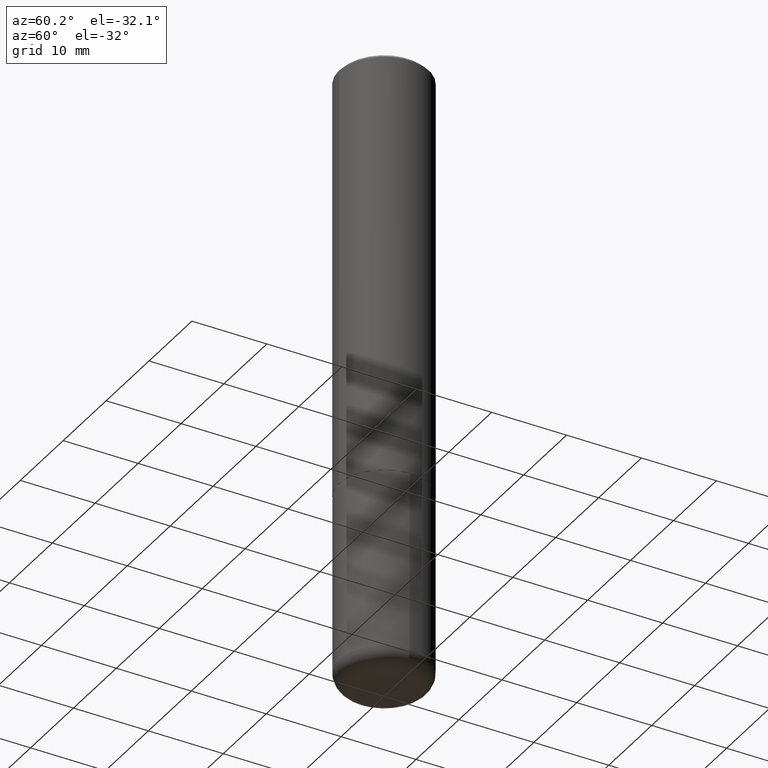
[diagram: clean part render]
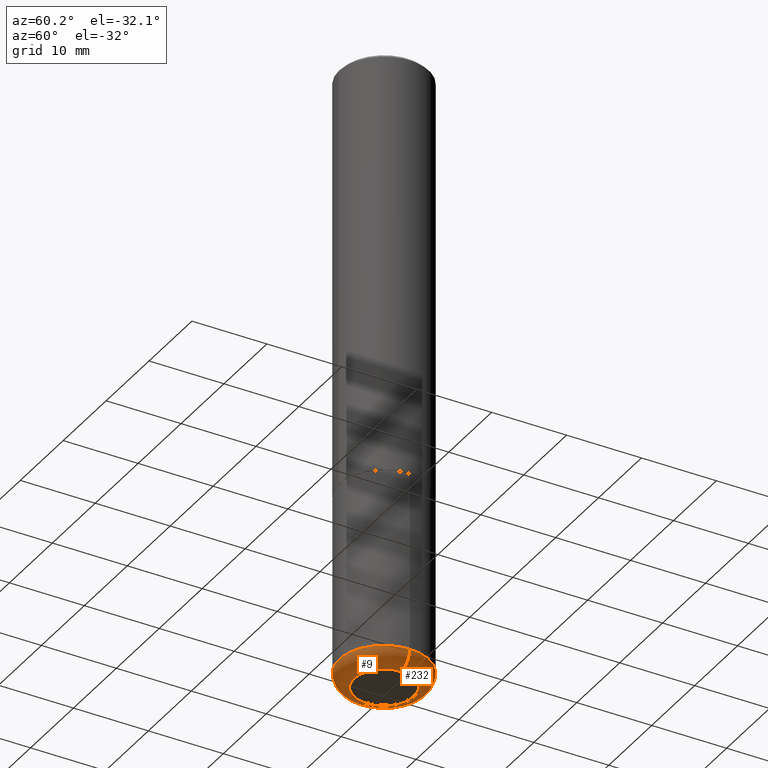
[diagram: same view with one multi-face feature highlighted, each face labeled with its STEP entity id]
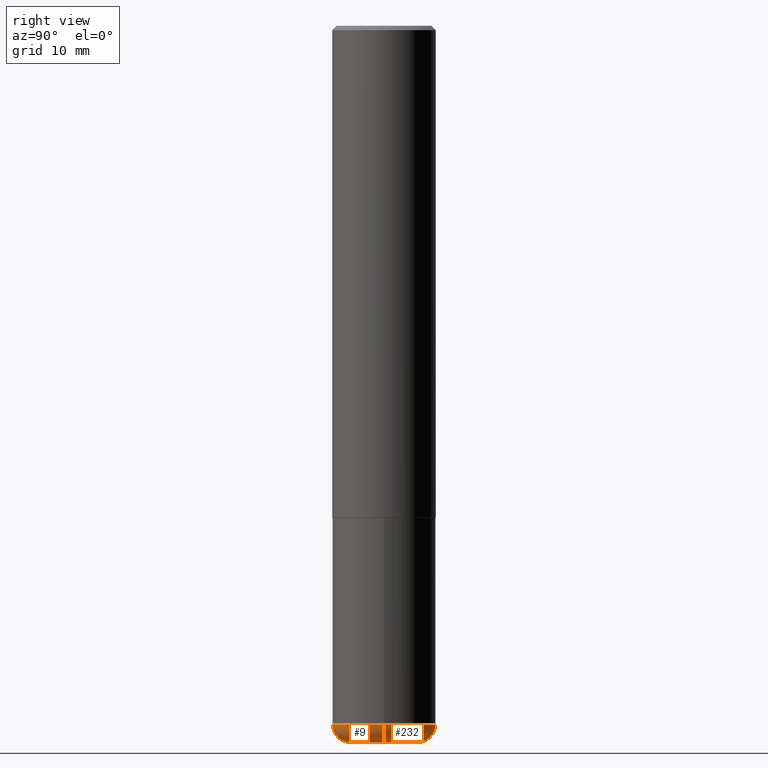
[diagram: same view with one multi-face feature highlighted, each face labeled with its STEP entity id]
A machine part, auxiliary view. The highlighted faces form ONE feature: a constant-radius fillet chain: 2 tangent blend faces with common blend radius 1.999 mm. The faces share edges in the B-rep.
A second angle (right view) of the same feature is appended — it is thin or edge-on in the first view.
Their STEP definitions:
[1] entity #9 (Torus):
#9 = ADVANCED_FACE ( 'NONE', ( #109 ), #128, .T. ) ;
#13 = ORIENTED_EDGE ( 'NONE', *, *, #85, .F. ) ;
#14 = AXIS2_PLACEMENT_3D ( 'NONE', #220, #155, #21 ) ;
#21 = DIRECTION ( 'NONE',  ( 1.000000000000000000, -6.982962677686261977E-15, 0.000000000000000000 ) ) ;
#23 = DIRECTION ( 'NONE',  ( -2.445468806185136597E-29, 3.491481338843145583E-15, 1.000000000000000000 ) ) ;
#25 = DIRECTION ( 'NONE',  ( 1.000000000000000000, -6.982962677686264344E-15, 0.000000000000000000 ) ) ;
#29 = VERTEX_POINT ( 'NONE', #276 ) ;
#41 = CIRCLE ( 'NONE', #48, 0.2362000000000000210 ) ;
#44 = CARTESIAN_POINT ( 'NONE',  ( 7.798600022924401307E-29, -1.113433398957079310E-14, -3.189000000000000501 ) ) ;
#46 = CARTESIAN_POINT ( 'NONE',  ( 0.2362000000000001321, -1.278370977404028805E-14, -3.189000000000000501 ) ) ;
#47 = AXIS2_PLACEMENT_3D ( 'NONE', #249, #217, #252 ) ;
#48 = AXIS2_PLACEMENT_3D ( 'NONE', #316, #23, #25 ) ;
#64 = ORIENTED_EDGE ( 'NONE', *, *, #242, .T. ) ;
#84 = DIRECTION ( 'NONE',  ( 1.000000000000000000, -6.982962677686273810E-15, 0.000000000000000000 ) ) ;
#85 = EDGE_CURVE ( 'NONE', #97, #270, #370, .T. ) ;
#97 = VERTEX_POINT ( 'NONE', #247 ) ;
#102 = VERTEX_POINT ( 'NONE', #46 ) ;
#109 = FACE_OUTER_BOUND ( 'NONE', #309, .T. ) ;
#128 = TOROIDAL_SURFACE ( 'NONE', #410, 0.1575000000000000011, 0.07870000000000024198 ) ;
#137 = AXIS2_PLACEMENT_3D ( 'NONE', #351, #197, #84 ) ;
#155 = DIRECTION ( 'NONE',  ( -2.445468806185136597E-29, 3.491481338843145583E-15, 1.000000000000000000 ) ) ;
#159 = CIRCLE ( 'NONE', #137, 0.07870000000000024198 ) ;
#175 = ORIENTED_EDGE ( 'NONE', *, *, #350, .F. ) ;
#197 = DIRECTION ( 'NONE',  ( -6.982962677686266711E-15, -1.000000000000000000, 3.491481338843145583E-15 ) ) ;
#217 = DIRECTION ( 'NONE',  ( 7.105427357601001859E-15, 1.000000000000000000, -3.491481338843145583E-15 ) ) ;
#220 = CARTESIAN_POINT ( 'NONE',  ( 7.991058417971172834E-29, -1.140911357093774960E-14, -3.267700000000000937 ) ) ;
#237 = ORIENTED_EDGE ( 'NONE', *, *, #296, .T. ) ;
#242 = EDGE_CURVE ( 'NONE', #97, #29, #285, .T. ) ;
#247 = CARTESIAN_POINT ( 'NONE',  ( -0.1575000000000000011, -9.873020404910514350E-15, -3.267700000000000937 ) ) ;
#249 = CARTESIAN_POINT ( 'NONE',  ( -0.1575000000000000011, -1.001522918074863550E-14, -3.189000000000000501 ) ) ;
#252 = DIRECTION ( 'NONE',  ( -1.000000000000000000, 7.105427357600995548E-15, 0.000000000000000000 ) ) ;
#270 = VERTEX_POINT ( 'NONE', #318 ) ;
#276 = CARTESIAN_POINT ( 'NONE',  ( 0.1575000000000000011, -1.250893019267333471E-14, -3.267700000000000937 ) ) ;
#285 = CIRCLE ( 'NONE', #14, 0.1575000000000000011 ) ;
#296 = EDGE_CURVE ( 'NONE', #29, #102, #159, .T. ) ;
#304 = DIRECTION ( 'NONE',  ( 1.000000000000000000, -6.982962677686265922E-15, 4.883557194083112901E-29 ) ) ;
#309 = EDGE_LOOP ( 'NONE', ( #13, #64, #237, #175 ) ) ;
#316 = CARTESIAN_POINT ( 'NONE',  ( 7.798600022924401307E-29, -1.113433398957079310E-14, -3.189000000000000501 ) ) ;
#318 = CARTESIAN_POINT ( 'NONE',  ( -0.2362000000000001321, -9.456032047705438285E-15, -3.189000000000000501 ) ) ;
#334 = DIRECTION ( 'NONE',  ( -2.445468806185136597E-29, 3.491481338843145583E-15, 1.000000000000000000 ) ) ;
#350 = EDGE_CURVE ( 'NONE', #270, #102, #41, .T. ) ;
#351 = CARTESIAN_POINT ( 'NONE',  ( 0.1575000000000000011, -1.223415061130637979E-14, -3.189000000000000501 ) ) ;
#370 = CIRCLE ( 'NONE', #47, 0.07870000000000024198 ) ;
#410 = AXIS2_PLACEMENT_3D ( 'NONE', #44, #334, #304 ) ;
[2] entity #232 (Torus):
#18 = DIRECTION ( 'NONE',  ( -2.445468806185136597E-29, 3.491481338843145583E-15, 1.000000000000000000 ) ) ;
#26 = CARTESIAN_POINT ( 'NONE',  ( 7.798600022924401307E-29, -1.113433398957079310E-14, -3.189000000000000501 ) ) ;
#29 = VERTEX_POINT ( 'NONE', #276 ) ;
#45 = DIRECTION ( 'NONE',  ( -2.445468806185136597E-29, 3.491481338843145583E-15, 1.000000000000000000 ) ) ;
#46 = CARTESIAN_POINT ( 'NONE',  ( 0.2362000000000001321, -1.278370977404028805E-14, -3.189000000000000501 ) ) ;
#47 = AXIS2_PLACEMENT_3D ( 'NONE', #249, #217, #252 ) ;
#74 = AXIS2_PLACEMENT_3D ( 'NONE', #26, #18, #314 ) ;
#84 = DIRECTION ( 'NONE',  ( 1.000000000000000000, -6.982962677686273810E-15, 0.000000000000000000 ) ) ;
#85 = EDGE_CURVE ( 'NONE', #97, #270, #370, .T. ) ;
#97 = VERTEX_POINT ( 'NONE', #247 ) ;
#102 = VERTEX_POINT ( 'NONE', #46 ) ;
#124 = ORIENTED_EDGE ( 'NONE', *, *, #296, .F. ) ;
#137 = AXIS2_PLACEMENT_3D ( 'NONE', #351, #197, #84 ) ;
#145 = DIRECTION ( 'NONE',  ( 1.000000000000000000, -6.982962677686261977E-15, 0.000000000000000000 ) ) ;
#147 = EDGE_CURVE ( 'NONE', #29, #97, #305, .T. ) ;
#159 = CIRCLE ( 'NONE', #137, 0.07870000000000024198 ) ;
#172 = CARTESIAN_POINT ( 'NONE',  ( 7.798600022924401307E-29, -1.113433398957079310E-14, -3.189000000000000501 ) ) ;
#191 = CIRCLE ( 'NONE', #223, 0.2362000000000000210 ) ;
#197 = DIRECTION ( 'NONE',  ( -6.982962677686266711E-15, -1.000000000000000000, 3.491481338843145583E-15 ) ) ;
#206 = ORIENTED_EDGE ( 'NONE', *, *, #147, .T. ) ;
#217 = DIRECTION ( 'NONE',  ( 7.105427357601001859E-15, 1.000000000000000000, -3.491481338843145583E-15 ) ) ;
#223 = AXIS2_PLACEMENT_3D ( 'NONE', #172, #302, #362 ) ;
#230 = ORIENTED_EDGE ( 'NONE', *, *, #306, .F. ) ;
#232 = ADVANCED_FACE ( 'NONE', ( #347 ), #346, .T. ) ;
#246 = AXIS2_PLACEMENT_3D ( 'NONE', #311, #45, #145 ) ;
#247 = CARTESIAN_POINT ( 'NONE',  ( -0.1575000000000000011, -9.873020404910514350E-15, -3.267700000000000937 ) ) ;
#249 = CARTESIAN_POINT ( 'NONE',  ( -0.1575000000000000011, -1.001522918074863550E-14, -3.189000000000000501 ) ) ;
#252 = DIRECTION ( 'NONE',  ( -1.000000000000000000, 7.105427357600995548E-15, 0.000000000000000000 ) ) ;
#270 = VERTEX_POINT ( 'NONE', #318 ) ;
#276 = CARTESIAN_POINT ( 'NONE',  ( 0.1575000000000000011, -1.250893019267333471E-14, -3.267700000000000937 ) ) ;
#296 = EDGE_CURVE ( 'NONE', #29, #102, #159, .T. ) ;
#302 = DIRECTION ( 'NONE',  ( -2.445468806185136597E-29, 3.491481338843145583E-15, 1.000000000000000000 ) ) ;
#305 = CIRCLE ( 'NONE', #246, 0.1575000000000000011 ) ;
#306 = EDGE_CURVE ( 'NONE', #102, #270, #191, .T. ) ;
#311 = CARTESIAN_POINT ( 'NONE',  ( 7.991058417971172834E-29, -1.140911357093774960E-14, -3.267700000000000937 ) ) ;
#314 = DIRECTION ( 'NONE',  ( 1.000000000000000000, -6.982962677686265922E-15, 4.883557194083112901E-29 ) ) ;
#318 = CARTESIAN_POINT ( 'NONE',  ( -0.2362000000000001321, -9.456032047705438285E-15, -3.189000000000000501 ) ) ;
#344 = ORIENTED_EDGE ( 'NONE', *, *, #85, .T. ) ;
#346 = TOROIDAL_SURFACE ( 'NONE', #74, 0.1575000000000000011, 0.07870000000000024198 ) ;
#347 = FACE_OUTER_BOUND ( 'NONE', #399, .T. ) ;
#351 = CARTESIAN_POINT ( 'NONE',  ( 0.1575000000000000011, -1.223415061130637979E-14, -3.189000000000000501 ) ) ;
#362 = DIRECTION ( 'NONE',  ( 1.000000000000000000, -6.982962677686264344E-15, 0.000000000000000000 ) ) ;
#370 = CIRCLE ( 'NONE', #47, 0.07870000000000024198 ) ;
#399 = EDGE_LOOP ( 'NONE', ( #206, #344, #230, #124 ) ) ;